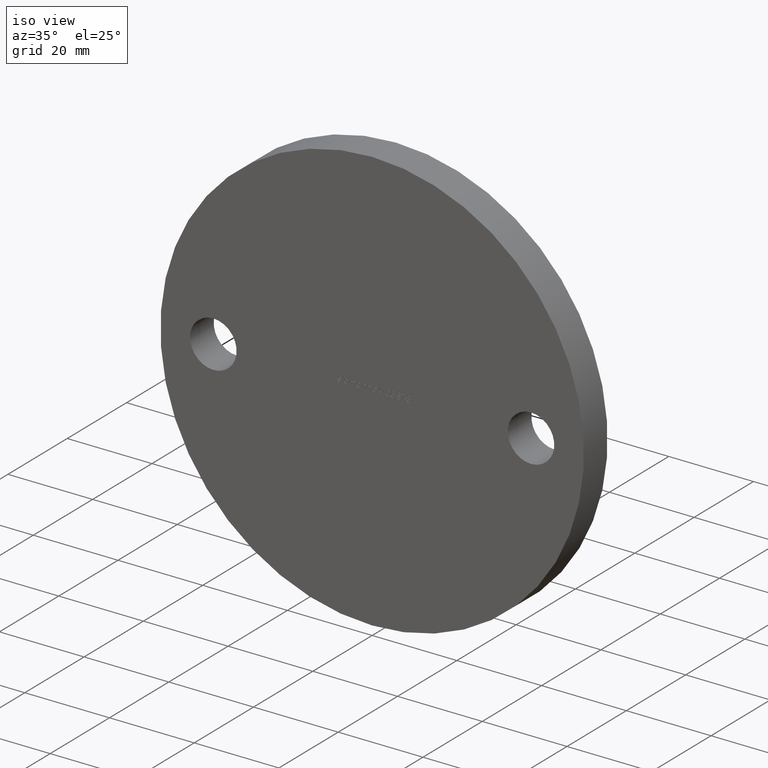
[diagram: clean part render]
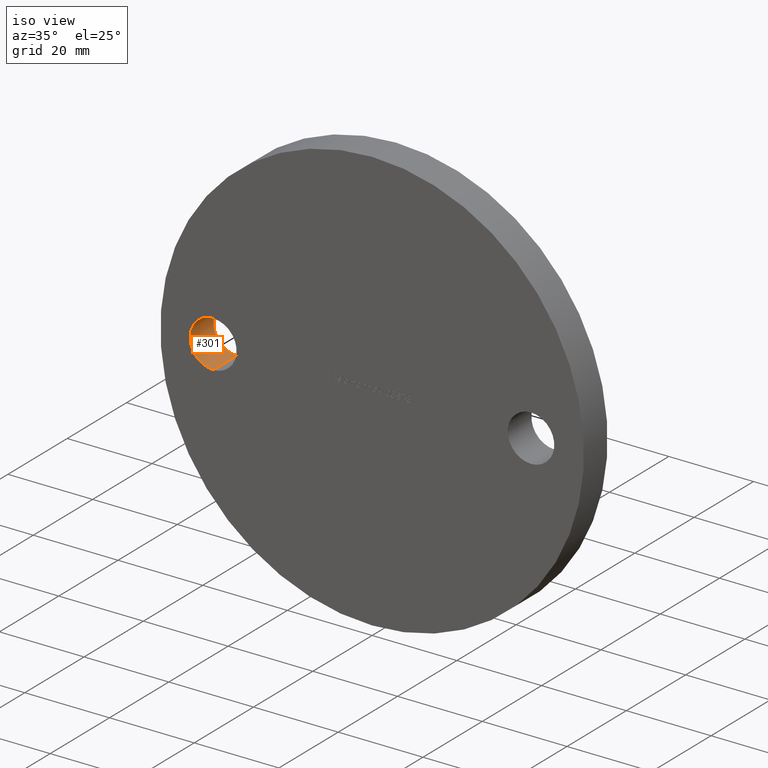
[diagram: same view with one face highlighted and labeled with its STEP entity id]
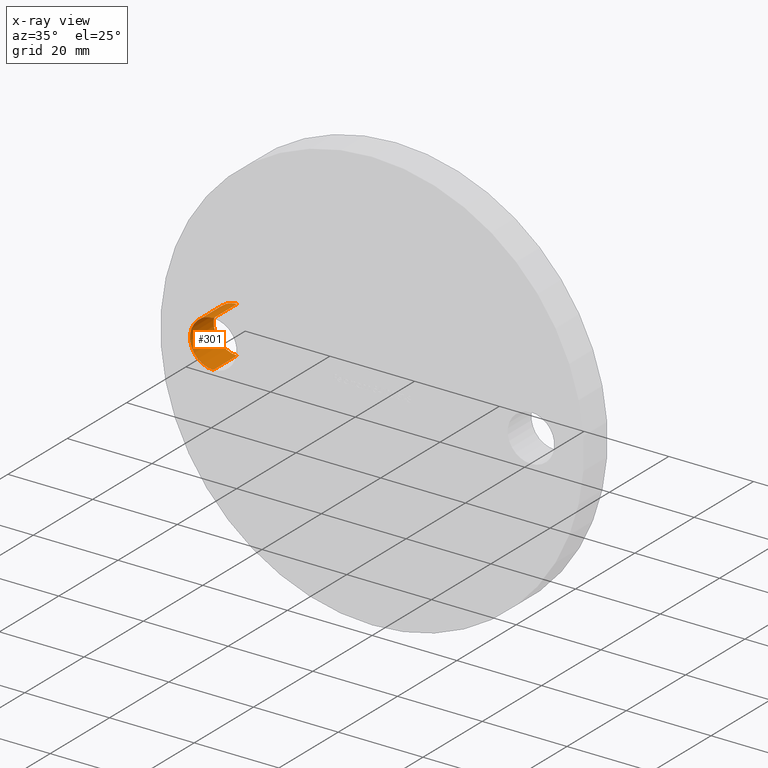
[diagram: x-ray of the same camera — body ghosted, the highlighted face saturated]
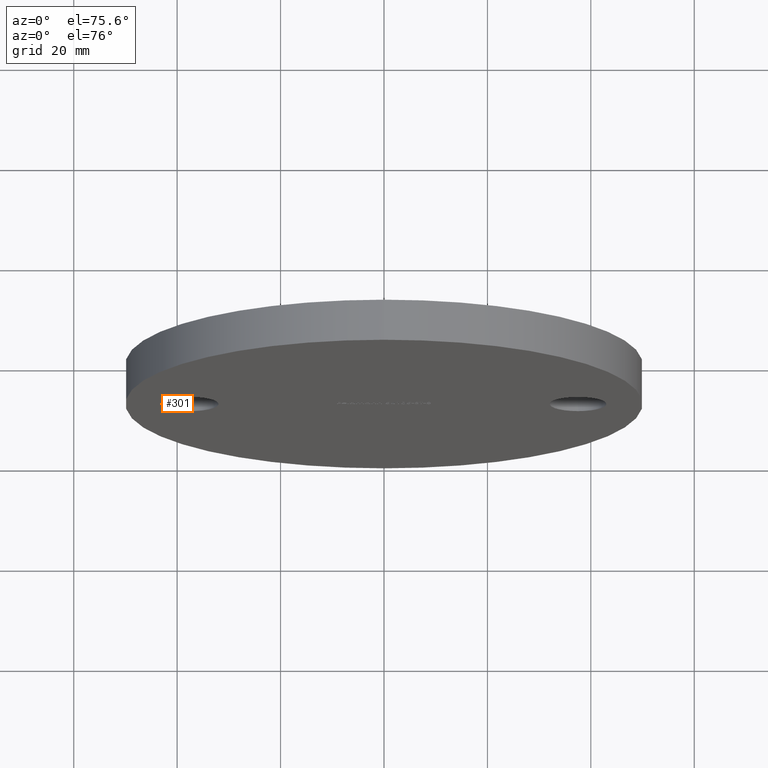
[diagram: same view with one face highlighted and labeled with its STEP entity id]
A machine part, iso view. The second image highlights one B-rep face of the part: STEP entity #301.
The next image is the same camera in x-ray: the body ghosted, the highlighted face saturated — about 0% of this face is hidden behind the body in this view.
A second angle (auxiliary view) of the same face is appended — the face is thin or edge-on in the first view.
In plain terms, the highlighted cylindrical surface (edge-blend (fillet) strip) has radius 5.5 mm, axis along (-0, 1, -0).
Its self-contained STEP definition (entity closure, byte-faithful):
#301 = ADVANCED_FACE ( 'NONE', ( #6538 ), #10456, .F. ) ;
#489 = LINE ( 'NONE', #6816, #5169 ) ;
#504 = DIRECTION ( 'NONE',  ( 0.0000000000000000000, 1.000000000000000000, 0.0000000000000000000 ) ) ;
#828 = ORIENTED_EDGE ( 'NONE', *, *, #10038, .F. ) ;
#1327 = EDGE_CURVE ( 'NONE', #11345, #2194, #6366, .T. ) ;
#1406 = DIRECTION ( 'NONE',  ( -0.0000000000000000000, 1.000000000000000000, -0.0000000000000000000 ) ) ;
#1466 = CARTESIAN_POINT ( 'NONE',  ( -37.50000000000000000, 0.0000000000000000000, -5.499999999999996400 ) ) ;
#2194 = VERTEX_POINT ( 'NONE', #4393 ) ;
#2348 = ORIENTED_EDGE ( 'NONE', *, *, #9543, .T. ) ;
#2472 = AXIS2_PLACEMENT_3D ( 'NONE', #10466, #504, #5526 ) ;
#2790 = EDGE_LOOP ( 'NONE', ( #828, #2348, #3771, #8370 ) ) ;
#3423 = CARTESIAN_POINT ( 'NONE',  ( -37.50000000000000000, 8.000000000000000000, 0.0000000000000000000 ) ) ;
#3578 = CARTESIAN_POINT ( 'NONE',  ( -37.50000000000000000, 8.000000000000000000, -5.499999999999996400 ) ) ;
#3689 = AXIS2_PLACEMENT_3D ( 'NONE', #10276, #1406, #9419 ) ;
#3771 = ORIENTED_EDGE ( 'NONE', *, *, #1327, .T. ) ;
#3820 = CARTESIAN_POINT ( 'NONE',  ( -37.50000000000000000, 0.0000000000000000000, 5.499999999999996400 ) ) ;
#4266 = CIRCLE ( 'NONE', #2472, 5.499999999999996400 ) ;
#4393 = CARTESIAN_POINT ( 'NONE',  ( -37.50000000000000000, 8.000000000000000000, 5.499999999999996400 ) ) ;
#5169 = VECTOR ( 'NONE', #12859, 1000.000000000000000 ) ;
#5351 = VECTOR ( 'NONE', #11953, 1000.000000000000000 ) ;
#5418 = DIRECTION ( 'NONE',  ( 0.0000000000000000000, 1.000000000000000000, 0.0000000000000000000 ) ) ;
#5526 = DIRECTION ( 'NONE',  ( 0.0000000000000000000, 0.0000000000000000000, 1.000000000000000000 ) ) ;
#6337 = VERTEX_POINT ( 'NONE', #1466 ) ;
#6366 = CIRCLE ( 'NONE', #9294, 5.499999999999996400 ) ;
#6413 = DIRECTION ( 'NONE',  ( 0.0000000000000000000, 0.0000000000000000000, 1.000000000000000000 ) ) ;
#6538 = FACE_OUTER_BOUND ( 'NONE', #2790, .T. ) ;
#6816 = CARTESIAN_POINT ( 'NONE',  ( -37.50000000000000000, 0.0000000000000000000, 5.499999999999996400 ) ) ;
#7026 = VERTEX_POINT ( 'NONE', #3820 ) ;
#8370 = ORIENTED_EDGE ( 'NONE', *, *, #10577, .F. ) ;
#8816 = CARTESIAN_POINT ( 'NONE',  ( -37.50000000000000000, 0.0000000000000000000, -5.499999999999996400 ) ) ;
#9294 = AXIS2_PLACEMENT_3D ( 'NONE', #3423, #5418, #6413 ) ;
#9419 = DIRECTION ( 'NONE',  ( 0.0000000000000000000, 0.0000000000000000000, 1.000000000000000000 ) ) ;
#9543 = EDGE_CURVE ( 'NONE', #6337, #11345, #10671, .T. ) ;
#10038 = EDGE_CURVE ( 'NONE', #6337, #7026, #4266, .T. ) ;
#10276 = CARTESIAN_POINT ( 'NONE',  ( -37.50000000000000000, 0.0000000000000000000, 0.0000000000000000000 ) ) ;
#10456 = CYLINDRICAL_SURFACE ( 'NONE', #3689, 5.499999999999996400 ) ;
#10466 = CARTESIAN_POINT ( 'NONE',  ( -37.50000000000000000, 0.0000000000000000000, 0.0000000000000000000 ) ) ;
#10577 = EDGE_CURVE ( 'NONE', #7026, #2194, #489, .T. ) ;
#10671 = LINE ( 'NONE', #8816, #5351 ) ;
#11345 = VERTEX_POINT ( 'NONE', #3578 ) ;
#11953 = DIRECTION ( 'NONE',  ( -0.0000000000000000000, 1.000000000000000000, -0.0000000000000000000 ) ) ;
#12859 = DIRECTION ( 'NONE',  ( -0.0000000000000000000, 1.000000000000000000, -0.0000000000000000000 ) ) ;